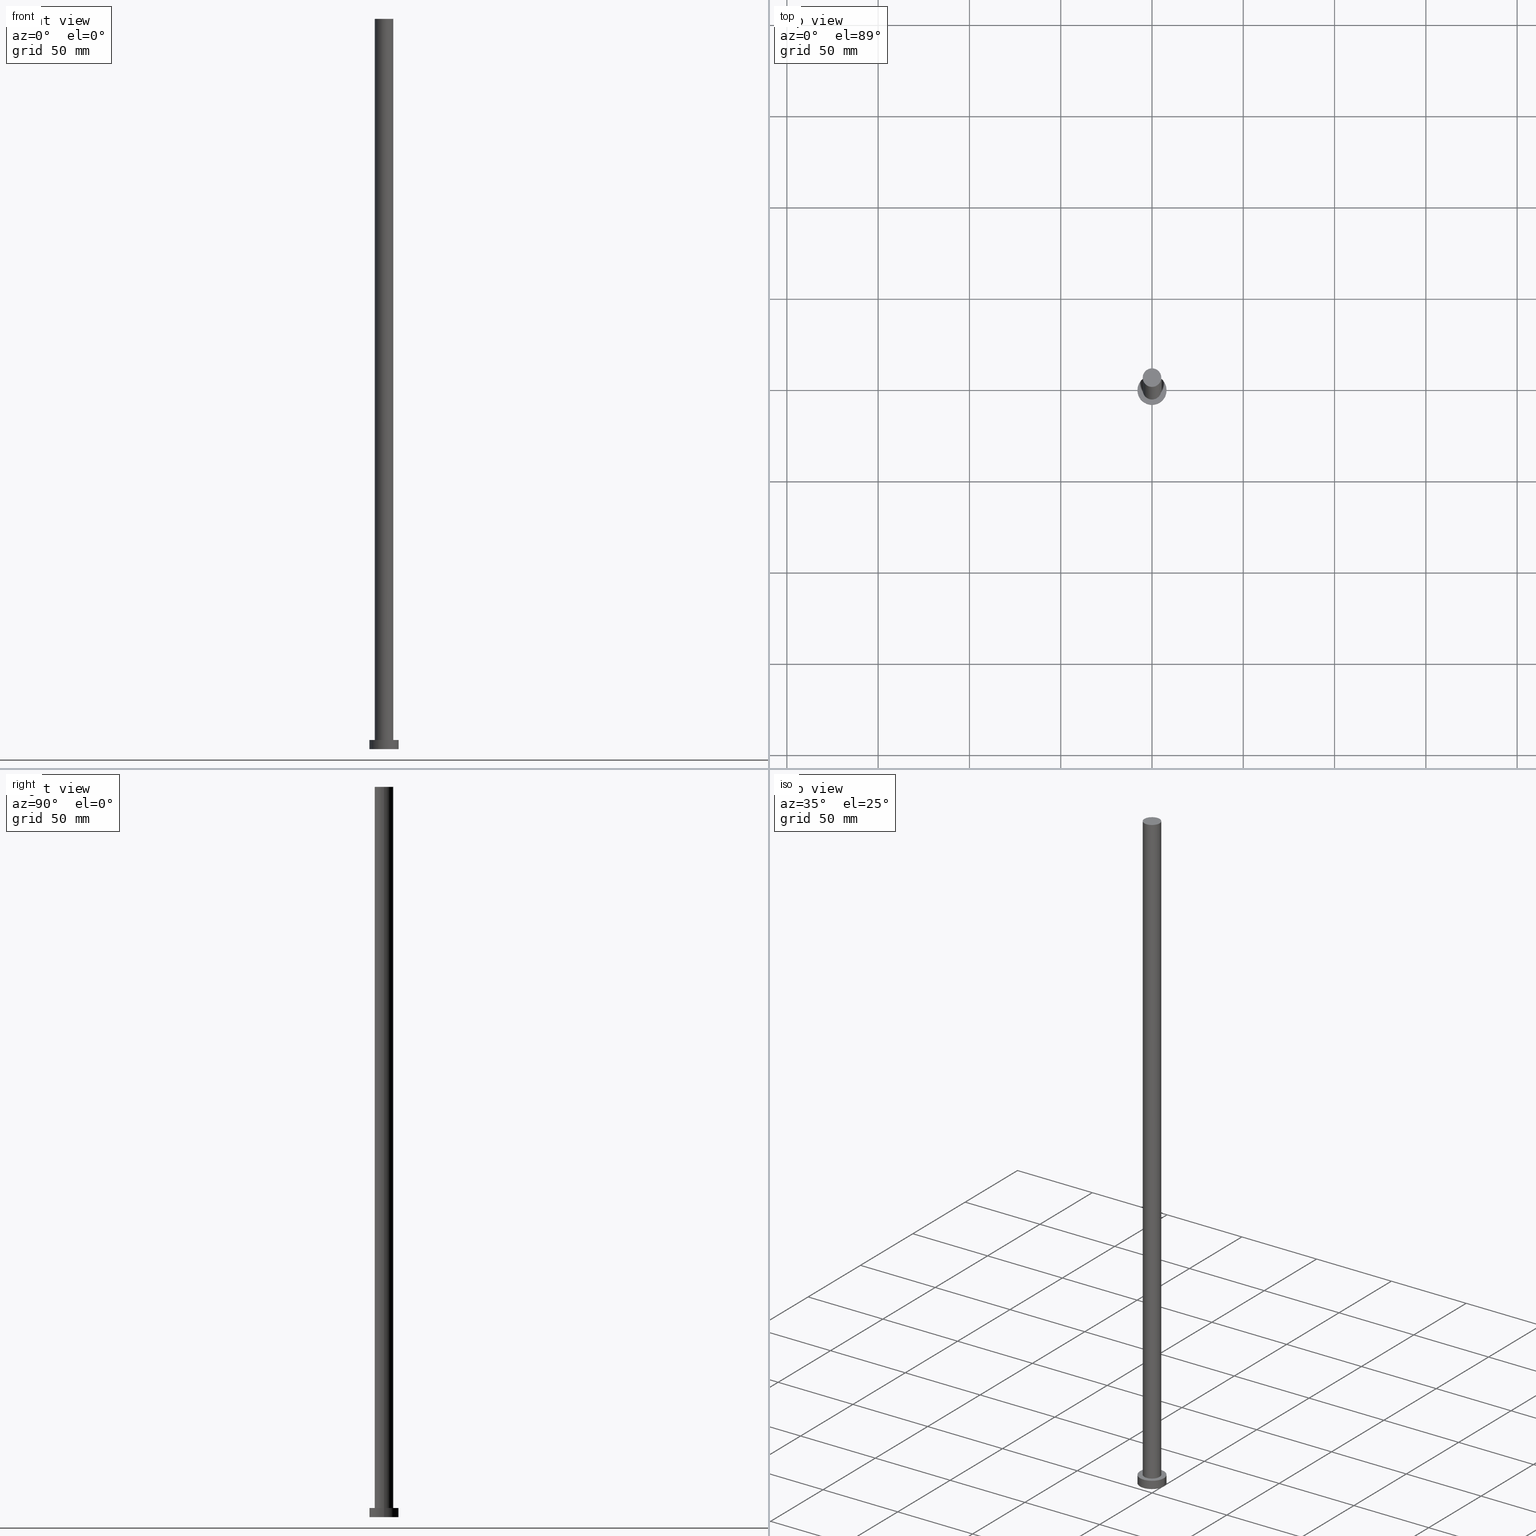
[diagram: canonical four-view strip — front | top / right | iso, engineering-drawing reading convention]
A machine part, canonical four-view strip (front | top / right | iso — engineering-drawing reading convention). The complete STEP part file that produces these views, byte-faithful:
ISO-10303-21;
HEADER;
FILE_DESCRIPTION (( 'STEP AP203' ),
    '1' );
FILE_NAME ('3bb0.STEP',
    '2023-02-13T09:56:32',
    ( '' ),
    ( '' ),
    'SwSTEP 2.0',
    'SolidWorks 2019',
    '' );
FILE_SCHEMA (( 'CONFIG_CONTROL_DESIGN' ));
ENDSEC;

DATA;
#1 = ORIENTED_EDGE ( 'NONE', *, *, #254, .F. ) ;
#2 = VERTEX_POINT ( 'NONE', #73 ) ;
#3 = CALENDAR_DATE ( 2023, 13, 2 ) ;
#4 = CARTESIAN_POINT ( 'NONE',  ( -8.000000000000000000, 0.000000000000000000, 5.000000000000000000 ) ) ;
#5 = EDGE_CURVE ( 'NONE', #110, #81, #79, .T. ) ;
#6 = VERTEX_POINT ( 'NONE', #200 ) ;
#7 = DIRECTION ( 'NONE',  ( 1.000000000000000000, 0.000000000000000000, -0.000000000000000000 ) ) ;
#8 = SECURITY_CLASSIFICATION_LEVEL ( 'unclassified' ) ;
#9 = CALENDAR_DATE ( 2023, 13, 2 ) ;
#10 = AXIS2_PLACEMENT_3D ( 'NONE', #214, #153, #137 ) ;
#11 = VECTOR ( 'NONE', #51, 1000.000000000000000 ) ;
#12 = AXIS2_PLACEMENT_3D ( 'NONE', #181, #228, #245 ) ;
#13 = FACE_OUTER_BOUND ( 'NONE', #41, .T. ) ;
#14 = CIRCLE ( 'NONE', #179, 5.100000000000001421 ) ;
#15 = CIRCLE ( 'NONE', #87, 8.000000000000000000 ) ;
#16 = CIRCLE ( 'NONE', #63, 8.000000000000000000 ) ;
#17 = ADVANCED_FACE ( 'NONE', ( #113 ), #139, .F. ) ;
#18 = APPLICATION_CONTEXT ( 'configuration controlled 3d designs of mechanical parts and assemblies' ) ;
#19 = DIRECTION ( 'NONE',  ( -1.000000000000000000, 0.000000000000000000, 0.000000000000000000 ) ) ;
#20 = PERSON_AND_ORGANIZATION_ROLE ( 'creator' ) ;
#21 = CYLINDRICAL_SURFACE ( 'NONE', #52, 8.000000000000000000 ) ;
#22 = LOCAL_TIME ( 10, 56, 32.00000000000000000, #98 ) ;
#23 = DATE_AND_TIME ( #3, #22 ) ;
#24 = APPROVAL ( #71, 'NEUR�EN�' ) ;
#25 = DIRECTION ( 'NONE',  ( 1.000000000000000000, 0.000000000000000000, 0.000000000000000000 ) ) ;
#26 = CARTESIAN_POINT ( 'NONE',  ( 0.000000000000000000, 0.000000000000000000, 5.000000000000000000 ) ) ;
#27 = DIRECTION ( 'NONE',  ( -0.000000000000000000, -0.000000000000000000, -1.000000000000000000 ) ) ;
#28 = MANIFOLD_SOLID_BREP ( 'P�idat vysunut�m3', #246 ) ;
#29 = VERTEX_POINT ( 'NONE', #192 ) ;
#30 = CYLINDRICAL_SURFACE ( 'NONE', #230, 8.000000000000000000 ) ;
#31 = EDGE_LOOP ( 'NONE', ( #128, #132, #174, #172 ) ) ;
#32 =( LENGTH_UNIT ( ) NAMED_UNIT ( * ) SI_UNIT ( .MILLI., .METRE. ) );
#33 = CARTESIAN_POINT ( 'NONE',  ( 0.000000000000000000, 0.000000000000000000, 400.0000000000000000 ) ) ;
#34 = PRODUCT_RELATED_PRODUCT_CATEGORY ( 'detail', '', ( #72 ) ) ;
#35 = DIRECTION ( 'NONE',  ( 1.000000000000000000, 0.000000000000000000, 0.000000000000000000 ) ) ;
#36 = APPLICATION_PROTOCOL_DEFINITION ( 'international standard', 'config_control_design', 1994, #18 ) ;
#37 = CARTESIAN_POINT ( 'NONE',  ( 0.000000000000000000, 0.000000000000000000, 0.000000000000000000 ) ) ;
#38 = DATE_AND_TIME ( #217, #126 ) ;
#39 = PERSON_AND_ORGANIZATION ( #187, #90 ) ;
#40 = EDGE_CURVE ( 'NONE', #171, #29, #118, .T. ) ;
#41 = EDGE_LOOP ( 'NONE', ( #69, #201 ) ) ;
#42 = APPROVAL_STATUS ( 'not_yet_approved' ) ;
#43 = DATE_TIME_ROLE ( 'classification_date' ) ;
#44 = ADVANCED_FACE ( 'NONE', ( #216 ), #115, .T. ) ;
#45 = ORIENTED_EDGE ( 'NONE', *, *, #53, .F. ) ;
#46 = ORIENTED_EDGE ( 'NONE', *, *, #254, .T. ) ;
#47 = DIRECTION ( 'NONE',  ( 1.000000000000000000, 0.000000000000000000, -0.000000000000000000 ) ) ;
#48 = DIRECTION ( 'NONE',  ( -1.000000000000000000, 0.000000000000000000, 0.000000000000000000 ) ) ;
#49 = ORIENTED_EDGE ( 'NONE', *, *, #5, .F. ) ;
#50 = CIRCLE ( 'NONE', #123, 5.100000000000001421 ) ;
#51 = DIRECTION ( 'NONE',  ( -0.000000000000000000, -0.000000000000000000, -1.000000000000000000 ) ) ;
#52 = AXIS2_PLACEMENT_3D ( 'NONE', #99, #170, #56 ) ;
#53 = EDGE_CURVE ( 'NONE', #81, #110, #50, .T. ) ;
#54 = PERSON_AND_ORGANIZATION_ROLE ( 'design_supplier' ) ;
#55 = ADVANCED_FACE ( 'NONE', ( #197 ), #21, .T. ) ;
#56 = DIRECTION ( 'NONE',  ( -1.000000000000000000, 0.000000000000000000, 0.000000000000000000 ) ) ;
#57 = LOCAL_TIME ( 10, 56, 32.00000000000000000, #244 ) ;
#58 = COORDINATED_UNIVERSAL_TIME_OFFSET ( 1, 0, .AHEAD. ) ;
#59 = CARTESIAN_POINT ( 'NONE',  ( 8.000000000000000000, 9.797174393178825657E-16, 0.000000000000000000 ) ) ;
#60 = ORIENTED_EDGE ( 'NONE', *, *, #53, .T. ) ;
#61 = CARTESIAN_POINT ( 'NONE',  ( 0.000000000000000000, 0.000000000000000000, 0.000000000000000000 ) ) ;
#62 = UNCERTAINTY_MEASURE_WITH_UNIT (LENGTH_MEASURE( 1.000000000000000082E-05 ), #32, 'distance_accuracy_value', 'NONE');
#63 = AXIS2_PLACEMENT_3D ( 'NONE', #64, #91, #186 ) ;
#64 = CARTESIAN_POINT ( 'NONE',  ( 0.000000000000000000, 0.000000000000000000, 0.000000000000000000 ) ) ;
#65 =( NAMED_UNIT ( * ) SI_UNIT ( $, .STERADIAN. ) SOLID_ANGLE_UNIT ( ) );
#66 = DIRECTION ( 'NONE',  ( 0.000000000000000000, 0.000000000000000000, 1.000000000000000000 ) ) ;
#67 = CYLINDRICAL_SURFACE ( 'NONE', #224, 5.100000000000001421 ) ;
#68 = CC_DESIGN_PERSON_AND_ORGANIZATION_ASSIGNMENT ( #253, #20, ( #207 ) ) ;
#69 = ORIENTED_EDGE ( 'NONE', *, *, #239, .T. ) ;
#70 = DIRECTION ( 'NONE',  ( -0.000000000000000000, -0.000000000000000000, -1.000000000000000000 ) ) ;
#71 = APPROVAL_STATUS ( 'not_yet_approved' ) ;
#72 = PRODUCT ( '3bb0', '3bb0', '', ( #95 ) ) ;
#73 = CARTESIAN_POINT ( 'NONE',  ( 5.100000000000001421, 6.245698675651501825E-16, 5.000000000000000000 ) ) ;
#74 = VERTEX_POINT ( 'NONE', #59 ) ;
#75 = PERSON_AND_ORGANIZATION ( #187, #90 ) ;
#76 = COORDINATED_UNIVERSAL_TIME_OFFSET ( 1, 0, .AHEAD. ) ;
#77 = DIRECTION ( 'NONE',  ( -0.000000000000000000, -0.000000000000000000, -1.000000000000000000 ) ) ;
#78 = EDGE_CURVE ( 'NONE', #29, #74, #15, .T. ) ;
#79 = CIRCLE ( 'NONE', #10, 5.100000000000001421 ) ;
#80 = SHAPE_DEFINITION_REPRESENTATION ( #182, #249 ) ;
#81 = VERTEX_POINT ( 'NONE', #83 ) ;
#82 = APPROVAL_DATE_TIME ( #204, #160 ) ;
#83 = CARTESIAN_POINT ( 'NONE',  ( -5.100000000000001421, 0.000000000000000000, 400.0000000000000000 ) ) ;
#84 = LOCAL_TIME ( 10, 56, 32.00000000000000000, #58 ) ;
#85 =( NAMED_UNIT ( * ) PLANE_ANGLE_UNIT ( ) SI_UNIT ( $, .RADIAN. ) );
#86 = CARTESIAN_POINT ( 'NONE',  ( 8.000000000000000000, 9.797174393178825657E-16, 5.000000000000000000 ) ) ;
#87 = AXIS2_PLACEMENT_3D ( 'NONE', #61, #125, #159 ) ;
#88 = CARTESIAN_POINT ( 'NONE',  ( -5.100000000000001421, 0.000000000000000000, 5.000000000000000000 ) ) ;
#89 = AXIS2_PLACEMENT_3D ( 'NONE', #248, #232, #206 ) ;
#90 = ORGANIZATION ( 'NEUR�EN�', 'NEUR�EN�', '' ) ;
#91 = DIRECTION ( 'NONE',  ( 0.000000000000000000, 0.000000000000000000, 1.000000000000000000 ) ) ;
#92 = CARTESIAN_POINT ( 'NONE',  ( 0.000000000000000000, 0.000000000000000000, 400.0000000000000000 ) ) ;
#93 = CC_DESIGN_PERSON_AND_ORGANIZATION_ASSIGNMENT ( #75, #158, ( #72 ) ) ;
#94 = FACE_OUTER_BOUND ( 'NONE', #220, .T. ) ;
#95 = MECHANICAL_CONTEXT ( 'NONE', #178, 'mechanical' ) ;
#96 = CC_DESIGN_PERSON_AND_ORGANIZATION_ASSIGNMENT ( #39, #177, ( #231 ) ) ;
#97 = CARTESIAN_POINT ( 'NONE',  ( 0.000000000000000000, 0.000000000000000000, 400.0000000000000000 ) ) ;
#98 = COORDINATED_UNIVERSAL_TIME_OFFSET ( 1, 0, .AHEAD. ) ;
#99 = CARTESIAN_POINT ( 'NONE',  ( 0.000000000000000000, 0.000000000000000000, 5.000000000000000000 ) ) ;
#100 = EDGE_CURVE ( 'NONE', #127, #2, #14, .T. ) ;
#101 = ORIENTED_EDGE ( 'NONE', *, *, #109, .T. ) ;
#102 = ORIENTED_EDGE ( 'NONE', *, *, #40, .F. ) ;
#103 = APPROVAL_PERSON_ORGANIZATION ( #114, #106, #134 ) ;
#104 = ADVANCED_FACE ( 'NONE', ( #94 ), #67, .T. ) ;
#105 = APPROVAL_DATE_TIME ( #141, #24 ) ;
#106 = APPROVAL ( #190, 'NEUR�EN�' ) ;
#107 = FACE_BOUND ( 'NONE', #250, .T. ) ;
#108 = DESIGN_CONTEXT ( 'detailed design', #18, 'design' ) ;
#109 = EDGE_CURVE ( 'NONE', #6, #74, #212, .T. ) ;
#110 = VERTEX_POINT ( 'NONE', #208 ) ;
#111 = DIRECTION ( 'NONE',  ( -0.000000000000000000, -0.000000000000000000, -1.000000000000000000 ) ) ;
#112 = APPROVAL_PERSON_ORGANIZATION ( #218, #24, #121 ) ;
#113 = FACE_OUTER_BOUND ( 'NONE', #198, .T. ) ;
#114 = PERSON_AND_ORGANIZATION ( #187, #90 ) ;
#115 = CYLINDRICAL_SURFACE ( 'NONE', #184, 5.100000000000001421 ) ;
#116 = DIRECTION ( 'NONE',  ( 0.000000000000000000, 0.000000000000000000, 1.000000000000000000 ) ) ;
#117 = PERSON_AND_ORGANIZATION ( #187, #90 ) ;
#118 = LINE ( 'NONE', #234, #162 ) ;
#119 = ORIENTED_EDGE ( 'NONE', *, *, #100, .T. ) ;
#120 = ADVANCED_FACE ( 'NONE', ( #229 ), #30, .T. ) ;
#121 = APPROVAL_ROLE ( '' ) ;
#122 = AXIS2_PLACEMENT_3D ( 'NONE', #92, #247, #47 ) ;
#123 = AXIS2_PLACEMENT_3D ( 'NONE', #97, #236, #135 ) ;
#124 = VECTOR ( 'NONE', #188, 1000.000000000000000 ) ;
#125 = DIRECTION ( 'NONE',  ( 0.000000000000000000, 0.000000000000000000, 1.000000000000000000 ) ) ;
#126 = LOCAL_TIME ( 10, 56, 32.00000000000000000, #76 ) ;
#127 = VERTEX_POINT ( 'NONE', #88 ) ;
#128 = ORIENTED_EDGE ( 'NONE', *, *, #109, .F. ) ;
#129 = ORIENTED_EDGE ( 'NONE', *, *, #183, .T. ) ;
#130 = ADVANCED_FACE ( 'NONE', ( #189 ), #166, .T. ) ;
#131 = AXIS2_PLACEMENT_3D ( 'NONE', #37, #202, #7 ) ;
#132 = ORIENTED_EDGE ( 'NONE', *, *, #239, .F. ) ;
#133 = APPLICATION_PROTOCOL_DEFINITION ( 'international standard', 'config_control_design', 1994, #178 ) ;
#134 = APPROVAL_ROLE ( '' ) ;
#135 = DIRECTION ( 'NONE',  ( 1.000000000000000000, 0.000000000000000000, 0.000000000000000000 ) ) ;
#136 = LINE ( 'NONE', #199, #124 ) ;
#137 = DIRECTION ( 'NONE',  ( 1.000000000000000000, 0.000000000000000000, 0.000000000000000000 ) ) ;
#138 = SECURITY_CLASSIFICATION ( '', '', #8 ) ;
#139 = PLANE ( 'NONE',  #131 ) ;
#140 = ORIENTED_EDGE ( 'NONE', *, *, #211, .T. ) ;
#141 = DATE_AND_TIME ( #242, #57 ) ;
#142 = PERSON_AND_ORGANIZATION_ROLE ( 'classification_officer' ) ;
#143 = CC_DESIGN_DATE_AND_TIME_ASSIGNMENT ( #23, #237, ( #207 ) ) ;
#144 =( GEOMETRIC_REPRESENTATION_CONTEXT ( 3 ) GLOBAL_UNCERTAINTY_ASSIGNED_CONTEXT ( ( #62 ) ) GLOBAL_UNIT_ASSIGNED_CONTEXT ( ( #32, #85, #65 ) ) REPRESENTATION_CONTEXT ( 'NONE', 'WORKASPACE' ) );
#145 = CALENDAR_DATE ( 2023, 13, 2 ) ;
#146 = EDGE_LOOP ( 'NONE', ( #240, #101, #140, #102 ) ) ;
#147 = DIRECTION ( 'NONE',  ( 1.000000000000000000, 0.000000000000000000, 0.000000000000000000 ) ) ;
#148 = DIRECTION ( 'NONE',  ( 0.000000000000000000, 0.000000000000000000, 1.000000000000000000 ) ) ;
#149 = DIRECTION ( 'NONE',  ( -1.000000000000000000, 0.000000000000000000, 0.000000000000000000 ) ) ;
#150 = AXIS2_PLACEMENT_3D ( 'NONE', #26, #66, #147 ) ;
#151 = PLANE ( 'NONE',  #89 ) ;
#152 = DIRECTION ( 'NONE',  ( 1.000000000000000000, 0.000000000000000000, 0.000000000000000000 ) ) ;
#153 = DIRECTION ( 'NONE',  ( 0.000000000000000000, 0.000000000000000000, 1.000000000000000000 ) ) ;
#154 = CIRCLE ( 'NONE', #222, 5.100000000000001421 ) ;
#155 = CC_DESIGN_DATE_AND_TIME_ASSIGNMENT ( #221, #43, ( #138 ) ) ;
#156 = DIRECTION ( 'NONE',  ( -0.000000000000000000, -0.000000000000000000, -1.000000000000000000 ) ) ;
#157 = ORIENTED_EDGE ( 'NONE', *, *, #5, .T. ) ;
#158 = PERSON_AND_ORGANIZATION_ROLE ( 'design_owner' ) ;
#159 = DIRECTION ( 'NONE',  ( 1.000000000000000000, 0.000000000000000000, 0.000000000000000000 ) ) ;
#160 = APPROVAL ( #42, 'NEUR�EN�' ) ;
#161 = PERSON_AND_ORGANIZATION ( #187, #90 ) ;
#162 = VECTOR ( 'NONE', #77, 1000.000000000000000 ) ;
#163 = DIRECTION ( 'NONE',  ( 0.000000000000000000, 0.000000000000000000, 1.000000000000000000 ) ) ;
#164 = EDGE_CURVE ( 'NONE', #81, #127, #251, .T. ) ;
#165 = ORIENTED_EDGE ( 'NONE', *, *, #164, .F. ) ;
#166 = PLANE ( 'NONE',  #122 ) ;
#167 = ORIENTED_EDGE ( 'NONE', *, *, #164, .T. ) ;
#168 = EDGE_LOOP ( 'NONE', ( #60, #157 ) ) ;
#169 = AXIS2_PLACEMENT_3D ( 'NONE', #255, #116, #152 ) ;
#170 = DIRECTION ( 'NONE',  ( -0.000000000000000000, -0.000000000000000000, -1.000000000000000000 ) ) ;
#171 = VERTEX_POINT ( 'NONE', #4 ) ;
#172 = ORIENTED_EDGE ( 'NONE', *, *, #78, .T. ) ;
#173 = CC_DESIGN_PERSON_AND_ORGANIZATION_ASSIGNMENT ( #180, #54, ( #231 ) ) ;
#174 = ORIENTED_EDGE ( 'NONE', *, *, #40, .T. ) ;
#175 = CC_DESIGN_APPROVAL ( #160, ( #138 ) ) ;
#176 = COORDINATED_UNIVERSAL_TIME_OFFSET ( 1, 0, .AHEAD. ) ;
#177 = PERSON_AND_ORGANIZATION_ROLE ( 'creator' ) ;
#178 = APPLICATION_CONTEXT ( 'configuration controlled 3d designs of mechanical parts and assemblies' ) ;
#179 = AXIS2_PLACEMENT_3D ( 'NONE', #227, #148, #35 ) ;
#180 = PERSON_AND_ORGANIZATION ( #187, #90 ) ;
#181 = CARTESIAN_POINT ( 'NONE',  ( 0.000000000000000000, 0.000000000000000000, 5.000000000000000000 ) ) ;
#182 = PRODUCT_DEFINITION_SHAPE ( 'NONE', 'NONE',  #207 ) ;
#183 = EDGE_CURVE ( 'NONE', #110, #2, #136, .T. ) ;
#184 = AXIS2_PLACEMENT_3D ( 'NONE', #195, #156, #19 ) ;
#185 = LOCAL_TIME ( 10, 56, 32.00000000000000000, #176 ) ;
#186 = DIRECTION ( 'NONE',  ( 1.000000000000000000, 0.000000000000000000, 0.000000000000000000 ) ) ;
#187 = PERSON ( 'NEUR�EN�', 'NEUR�EN�', 'NEUR�EN�', ('NEUR�EN�'), ('NEUR�EN�'), ('NEUR�EN�') ) ;
#188 = DIRECTION ( 'NONE',  ( -0.000000000000000000, -0.000000000000000000, -1.000000000000000000 ) ) ;
#189 = FACE_OUTER_BOUND ( 'NONE', #168, .T. ) ;
#190 = APPROVAL_STATUS ( 'not_yet_approved' ) ;
#191 = CARTESIAN_POINT ( 'NONE',  ( 0.000000000000000000, 0.000000000000000000, 5.000000000000000000 ) ) ;
#192 = CARTESIAN_POINT ( 'NONE',  ( -8.000000000000000000, 0.000000000000000000, 0.000000000000000000 ) ) ;
#193 = CC_DESIGN_PERSON_AND_ORGANIZATION_ASSIGNMENT ( #117, #142, ( #138 ) ) ;
#194 = CARTESIAN_POINT ( 'NONE',  ( -5.100000000000001421, 0.000000000000000000, 400.0000000000000000 ) ) ;
#195 = CARTESIAN_POINT ( 'NONE',  ( 0.000000000000000000, 0.000000000000000000, 400.0000000000000000 ) ) ;
#196 = APPROVAL_DATE_TIME ( #38, #106 ) ;
#197 = FACE_OUTER_BOUND ( 'NONE', #146, .T. ) ;
#198 = EDGE_LOOP ( 'NONE', ( #209, #238 ) ) ;
#199 = CARTESIAN_POINT ( 'NONE',  ( 5.100000000000001421, 6.245698675651501825E-16, 400.0000000000000000 ) ) ;
#200 = CARTESIAN_POINT ( 'NONE',  ( 8.000000000000000000, 9.797174393178825657E-16, 5.000000000000000000 ) ) ;
#201 = ORIENTED_EDGE ( 'NONE', *, *, #215, .T. ) ;
#202 = DIRECTION ( 'NONE',  ( 0.000000000000000000, 0.000000000000000000, 1.000000000000000000 ) ) ;
#203 = ORIENTED_EDGE ( 'NONE', *, *, #100, .F. ) ;
#204 = DATE_AND_TIME ( #145, #84 ) ;
#205 = APPROVAL_ROLE ( '' ) ;
#206 = DIRECTION ( 'NONE',  ( 1.000000000000000000, 0.000000000000000000, -0.000000000000000000 ) ) ;
#207 = PRODUCT_DEFINITION ( 'NEZN�M�', '', #231, #108 ) ;
#208 = CARTESIAN_POINT ( 'NONE',  ( 5.100000000000001421, 6.245698675651501825E-16, 400.0000000000000000 ) ) ;
#209 = ORIENTED_EDGE ( 'NONE', *, *, #78, .F. ) ;
#210 = CC_DESIGN_APPROVAL ( #106, ( #207 ) ) ;
#211 = EDGE_CURVE ( 'NONE', #74, #29, #16, .T. ) ;
#212 = LINE ( 'NONE', #86, #243 ) ;
#213 = CIRCLE ( 'NONE', #150, 8.000000000000000000 ) ;
#214 = CARTESIAN_POINT ( 'NONE',  ( 0.000000000000000000, 0.000000000000000000, 400.0000000000000000 ) ) ;
#215 = EDGE_CURVE ( 'NONE', #6, #171, #213, .T. ) ;
#216 = FACE_OUTER_BOUND ( 'NONE', #223, .T. ) ;
#217 = CALENDAR_DATE ( 2023, 13, 2 ) ;
#218 = PERSON_AND_ORGANIZATION ( #187, #90 ) ;
#219 = ORIENTED_EDGE ( 'NONE', *, *, #183, .F. ) ;
#220 = EDGE_LOOP ( 'NONE', ( #49, #129, #46, #165 ) ) ;
#221 = DATE_AND_TIME ( #9, #185 ) ;
#222 = AXIS2_PLACEMENT_3D ( 'NONE', #226, #163, #25 ) ;
#223 = EDGE_LOOP ( 'NONE', ( #219, #45, #167, #119 ) ) ;
#224 = AXIS2_PLACEMENT_3D ( 'NONE', #33, #27, #149 ) ;
#225 = ADVANCED_FACE ( 'NONE', ( #107, #13 ), #151, .T. ) ;
#226 = CARTESIAN_POINT ( 'NONE',  ( 0.000000000000000000, 0.000000000000000000, 5.000000000000000000 ) ) ;
#227 = CARTESIAN_POINT ( 'NONE',  ( 0.000000000000000000, 0.000000000000000000, 5.000000000000000000 ) ) ;
#228 = DIRECTION ( 'NONE',  ( 0.000000000000000000, 0.000000000000000000, 1.000000000000000000 ) ) ;
#229 = FACE_OUTER_BOUND ( 'NONE', #31, .T. ) ;
#230 = AXIS2_PLACEMENT_3D ( 'NONE', #191, #111, #48 ) ;
#231 = PRODUCT_DEFINITION_FORMATION_WITH_SPECIFIED_SOURCE ( 'LIBOVOLN�', '', #72, .NOT_KNOWN. ) ;
#232 = DIRECTION ( 'NONE',  ( 0.000000000000000000, 0.000000000000000000, 1.000000000000000000 ) ) ;
#233 = CIRCLE ( 'NONE', #12, 8.000000000000000000 ) ;
#234 = CARTESIAN_POINT ( 'NONE',  ( -8.000000000000000000, 0.000000000000000000, 5.000000000000000000 ) ) ;
#235 = CC_DESIGN_APPROVAL ( #24, ( #231 ) ) ;
#236 = DIRECTION ( 'NONE',  ( 0.000000000000000000, 0.000000000000000000, 1.000000000000000000 ) ) ;
#237 = DATE_TIME_ROLE ( 'creation_date' ) ;
#238 = ORIENTED_EDGE ( 'NONE', *, *, #211, .F. ) ;
#239 = EDGE_CURVE ( 'NONE', #171, #6, #233, .T. ) ;
#240 = ORIENTED_EDGE ( 'NONE', *, *, #215, .F. ) ;
#241 = CC_DESIGN_SECURITY_CLASSIFICATION ( #138, ( #231 ) ) ;
#242 = CALENDAR_DATE ( 2023, 13, 2 ) ;
#243 = VECTOR ( 'NONE', #70, 1000.000000000000000 ) ;
#244 = COORDINATED_UNIVERSAL_TIME_OFFSET ( 1, 0, .AHEAD. ) ;
#245 = DIRECTION ( 'NONE',  ( 1.000000000000000000, 0.000000000000000000, 0.000000000000000000 ) ) ;
#246 = CLOSED_SHELL ( 'NONE', ( #104, #55, #120, #225, #17, #44, #130 ) ) ;
#247 = DIRECTION ( 'NONE',  ( 0.000000000000000000, 0.000000000000000000, 1.000000000000000000 ) ) ;
#248 = CARTESIAN_POINT ( 'NONE',  ( 0.000000000000000000, 0.000000000000000000, 5.000000000000000000 ) ) ;
#249 = ADVANCED_BREP_SHAPE_REPRESENTATION ( '3bb0', ( #28, #169 ), #144 ) ;
#250 = EDGE_LOOP ( 'NONE', ( #203, #1 ) ) ;
#251 = LINE ( 'NONE', #194, #11 ) ;
#252 = APPROVAL_PERSON_ORGANIZATION ( #161, #160, #205 ) ;
#253 = PERSON_AND_ORGANIZATION ( #187, #90 ) ;
#254 = EDGE_CURVE ( 'NONE', #2, #127, #154, .T. ) ;
#255 = CARTESIAN_POINT ( 'NONE',  ( 0.000000000000000000, 0.000000000000000000, 0.000000000000000000 ) ) ;
ENDSEC;
END-ISO-10303-21;
